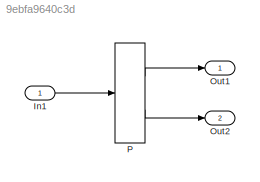
MODEL slx_9ebfa9640c3d
KIND model
CONFIG AbsTol = auto
CONFIG EnableMultiTasking = off
CONFIG FixedStep = auto
CONFIG MaxStep = auto
CONFIG MinStep = auto
CONFIG RelTol = 1e-3
CONFIG SampleTimeConstraint = Unconstrained
CONFIG Solver = FixedStepDiscrete
CONFIG SolverName = FixedStepDiscrete
CONFIG StartTime = 0.0
CONFIG StopTime = 10.0
BLOCK [Inport] In1
  IconDisplay = Port number
  OutDataTypeStr = int32
  PortDimensions = 1
BLOCK [Outport] Out1
  IconDisplay = Port number
BLOCK [Outport] Out2
  IconDisplay = Port number
  Port = 2
BLOCK [PreLookup] P
  BeginIndexSearchUsingPreviousIndexResult = on
  BreakpointDataTypeStr = double
  BreakpointsData = [33.8321104557476 35.3321104557476 36.8321104557476 38.3321104557476 39.8321104557476 41.3321104557476 42.8321104557476 44.3321104557476 45.8321104557476 47.3321104557476 48.8321104557476 50.3321104557476 51.8321104557476 53.3321104557476 54.8321104557476 56.3321104557476 57.8321104557476 59.3321104557476 60.8321104557476]
  FractionDataTypeStr = double
  IndexDataTypeStr = int8
  InputPortMap = u0
  Ports = [1, 2]
  RndMeth = Simplest
LINE In1:1 -> P:1
LINE P:1 -> Out1:1
LINE P:2 -> Out2:1
